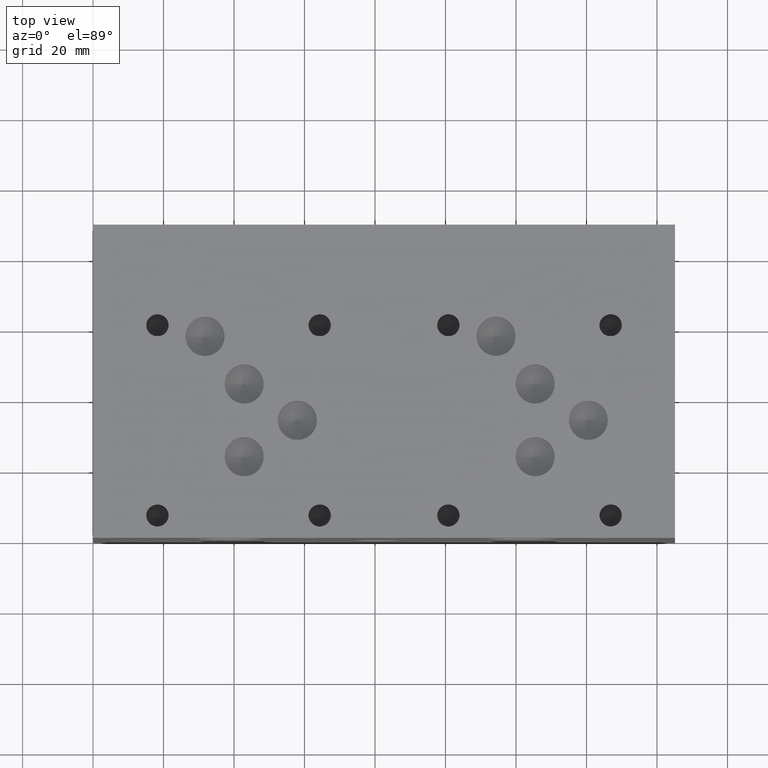
[diagram: clean part render]
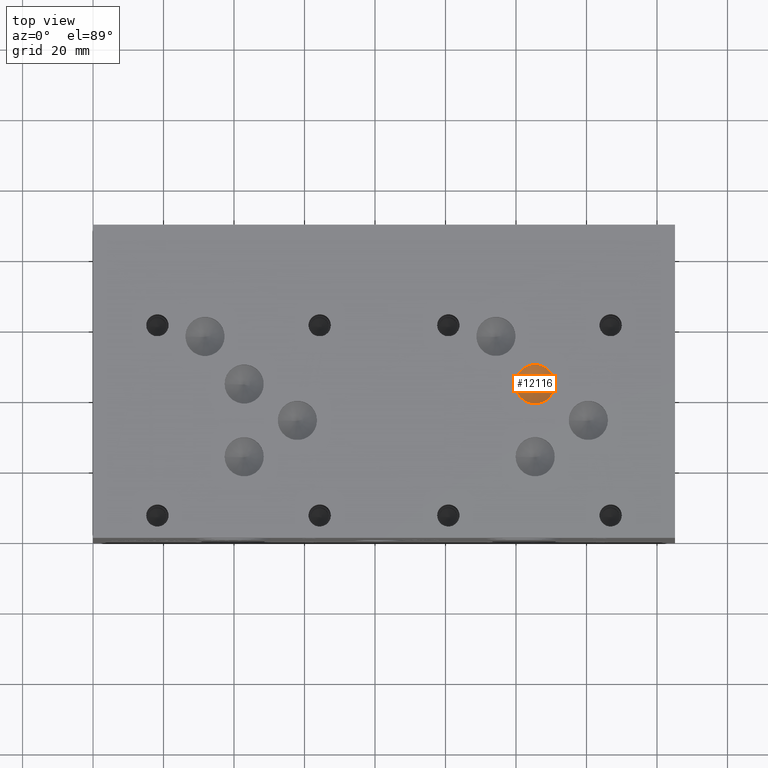
[diagram: same view with one face highlighted and labeled with its STEP entity id]
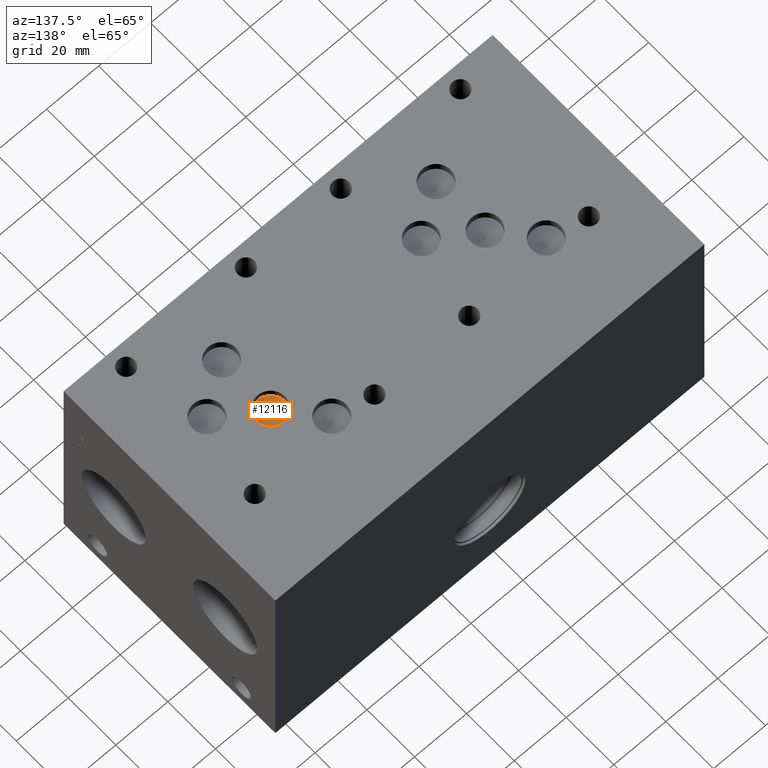
[diagram: same view with one face highlighted and labeled with its STEP entity id]
A machine part, top view. The second image highlights one B-rep face of the part: STEP entity #12116.
A second angle (auxiliary view) of the same face is appended — the face is thin or edge-on in the first view.
In plain terms, the highlighted conical surface has half-angle 60 deg.
Its self-contained STEP definition (entity closure, byte-faithful):
#31=CONICAL_SURFACE('',#12698,2.7813,1.0471975511966);
#221=CIRCLE('',#12699,5.5626);
#222=CIRCLE('',#12700,5.5626);
#1495=FACE_OUTER_BOUND('',#2193,.T.);
#2193=EDGE_LOOP('',(#10416,#10417,#10418,#10419));
#3355=LINE('',#20696,#4480);
#4480=VECTOR('',#14957,2.7813);
#5576=VERTEX_POINT('',#20692);
#5577=VERTEX_POINT('',#20693);
#5578=VERTEX_POINT('',#20695);
#7225=EDGE_CURVE('',#5576,#5577,#221,.T.);
#7226=EDGE_CURVE('',#5577,#5578,#3355,.T.);
#7227=EDGE_CURVE('',#5577,#5576,#222,.T.);
#10416=ORIENTED_EDGE('',*,*,#7225,.T.);
#10417=ORIENTED_EDGE('',*,*,#7226,.T.);
#10418=ORIENTED_EDGE('',*,*,#7226,.F.);
#10419=ORIENTED_EDGE('',*,*,#7227,.T.);
#12116=ADVANCED_FACE('',(#1495),#31,.F.);
#12698=AXIS2_PLACEMENT_3D('',#20691,#14953,#14954);
#12699=AXIS2_PLACEMENT_3D('',#20694,#14955,#14956);
#12700=AXIS2_PLACEMENT_3D('',#20697,#14958,#14959);
#14953=DIRECTION('center_axis',(0.,0.,1.));
#14954=DIRECTION('ref_axis',(1.,0.,0.));
#14955=DIRECTION('center_axis',(0.,0.,1.));
#14956=DIRECTION('ref_axis',(1.,0.,0.));
#14957=DIRECTION('',(0.866025403784439,1.06057523872491E-16,-0.5));
#14958=DIRECTION('center_axis',(0.,0.,1.));
#14959=DIRECTION('ref_axis',(1.,0.,0.));
#20691=CARTESIAN_POINT('Origin',(125.4252,43.6499,84.0826456963029));
#20692=CARTESIAN_POINT('',(130.9878,43.6499,85.68843));
#20693=CARTESIAN_POINT('',(119.8626,43.6499,85.68843));
#20694=CARTESIAN_POINT('Origin',(125.4252,43.6499,85.68843));
#20695=CARTESIAN_POINT('',(125.4252,43.6499,82.4768613926058));
#20696=CARTESIAN_POINT('',(122.6439,43.6499,84.0826456963029));
#20697=CARTESIAN_POINT('Origin',(125.4252,43.6499,85.68843));